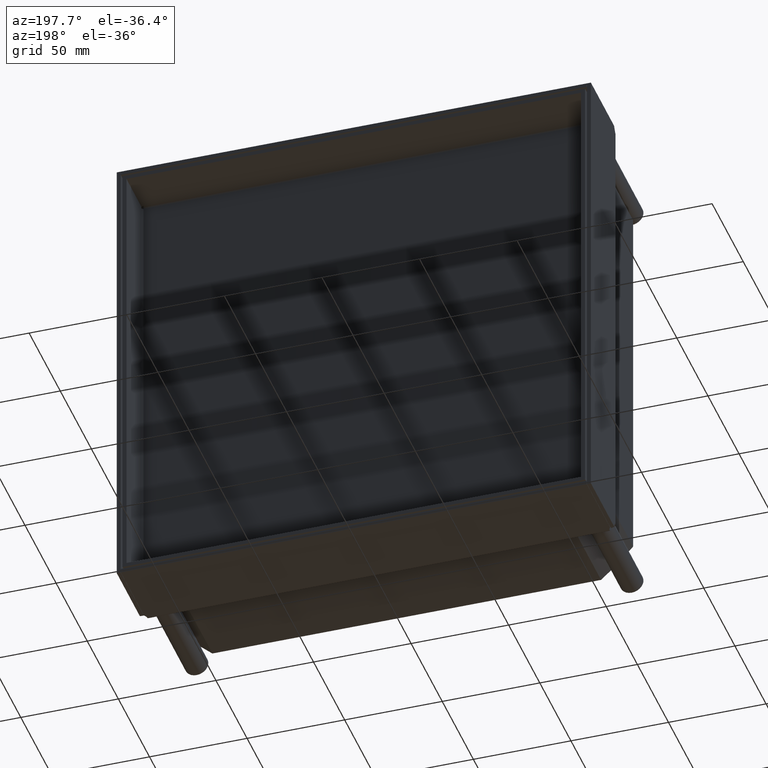
[diagram: clean part render]
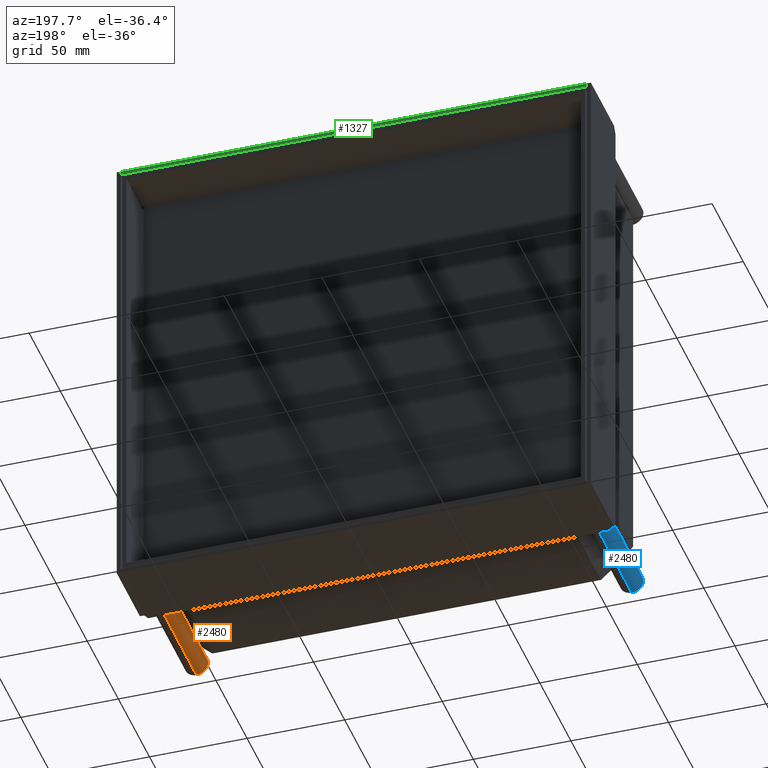
[diagram: same view with three faces highlighted in distinct colors, each labeled with its STEP entity id]
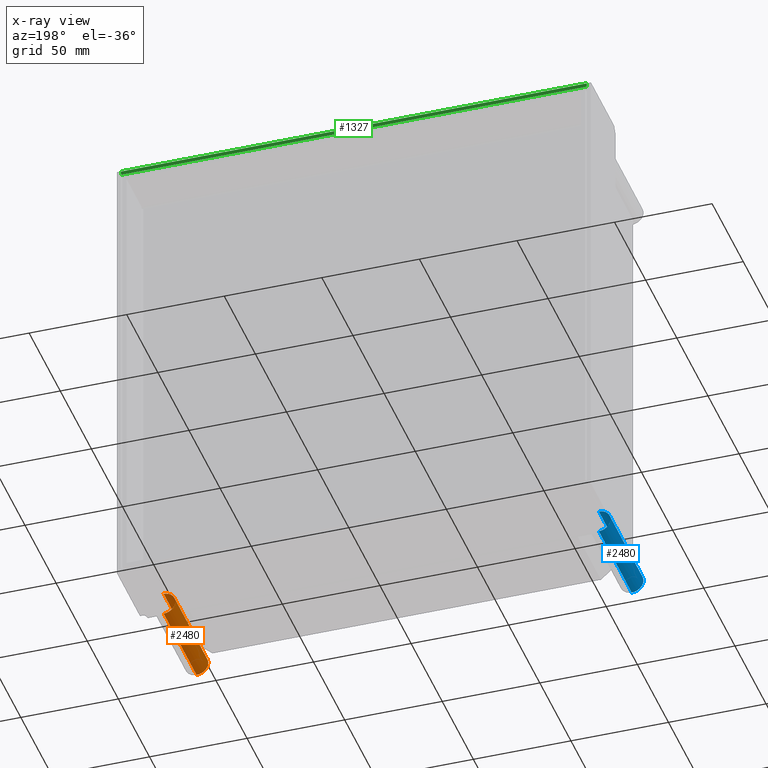
[diagram: x-ray of the same camera — body ghosted, the three highlighted faces saturated]
A machine part, auxiliary view with three faces highlighted in distinct colors.
The next image is the same camera in x-ray (body ghosted, the three faces saturated) — at least one of them is partly hidden behind the body in this view.
Their STEP definitions:

[orange] entity #2480 — the highlighted cylindrical surface (edge-blend (fillet) strip) has radius 6 mm, axis along (0, -1, 0).
#2236=CARTESIAN_POINT('',(0.E0,-4.973799150321E-14,1.065325243143E-14));
#2237=DIRECTION('',(0.E0,-1.E0,0.E0));
#2238=DIRECTION('',(0.E0,0.E0,1.E0));
#2239=AXIS2_PLACEMENT_3D('',#2236,#2237,#2238);
#2252=CARTESIAN_POINT('',(0.E0,5.3E1,0.E0));
#2253=DIRECTION('',(0.E0,-1.E0,0.E0));
#2254=DIRECTION('',(0.E0,0.E0,1.E0));
#2255=AXIS2_PLACEMENT_3D('',#2252,#2253,#2254);
#2260=DIRECTION('',(0.E0,-1.E0,0.E0));
#2261=VECTOR('',#2260,5.3E1);
#2262=CARTESIAN_POINT('',(0.E0,5.3E1,6.E0));
#2263=LINE('',#2262,#2261);
#2275=DIRECTION('',(0.E0,-1.E0,0.E0));
#2276=VECTOR('',#2275,5.3E1);
#2277=CARTESIAN_POINT('',(0.E0,5.3E1,-6.E0));
#2278=LINE('',#2277,#2276);
#2332=CARTESIAN_POINT('',(0.E0,5.3E1,6.E0));
#2333=CARTESIAN_POINT('',(0.E0,0.E0,6.E0));
#2334=VERTEX_POINT('',#2332);
#2335=VERTEX_POINT('',#2333);
#2348=CARTESIAN_POINT('',(0.E0,5.3E1,-6.E0));
#2349=CARTESIAN_POINT('',(0.E0,0.E0,-6.E0));
#2350=VERTEX_POINT('',#2348);
#2351=VERTEX_POINT('',#2349);
#2466=CARTESIAN_POINT('',(0.E0,6.09E1,0.E0));
#2467=DIRECTION('',(0.E0,-1.E0,0.E0));
#2468=DIRECTION('',(0.E0,0.E0,1.E0));
#2469=AXIS2_PLACEMENT_3D('',#2466,#2467,#2468);
#2470=CYLINDRICAL_SURFACE('',#2469,6.E0);
#2472=ORIENTED_EDGE('',*,*,#2471,.T.);
#2473=ORIENTED_EDGE('',*,*,#2455,.T.);
#2475=ORIENTED_EDGE('',*,*,#2474,.F.);
#2477=ORIENTED_EDGE('',*,*,#2476,.F.);
#2478=EDGE_LOOP('',(#2472,#2473,#2475,#2477));
#2479=FACE_OUTER_BOUND('',#2478,.F.);
#2240=CIRCLE('',#2239,6.E0);
#2256=CIRCLE('',#2255,6.E0);
#2455=EDGE_CURVE('',#2335,#2351,#2240,.T.);
#2471=EDGE_CURVE('',#2334,#2335,#2263,.T.);
#2474=EDGE_CURVE('',#2350,#2351,#2278,.T.);
#2476=EDGE_CURVE('',#2334,#2350,#2256,.T.);
#2480=ADVANCED_FACE('',(#2479),#2470,.T.);

[blue] entity #2480 — the highlighted cylindrical surface (edge-blend (fillet) strip) has radius 6 mm, axis along (0, -1, 0).
#2236=CARTESIAN_POINT('',(0.E0,-4.973799150321E-14,1.065325243143E-14));
#2237=DIRECTION('',(0.E0,-1.E0,0.E0));
#2238=DIRECTION('',(0.E0,0.E0,1.E0));
#2239=AXIS2_PLACEMENT_3D('',#2236,#2237,#2238);
#2252=CARTESIAN_POINT('',(0.E0,5.3E1,0.E0));
#2253=DIRECTION('',(0.E0,-1.E0,0.E0));
#2254=DIRECTION('',(0.E0,0.E0,1.E0));
#2255=AXIS2_PLACEMENT_3D('',#2252,#2253,#2254);
#2260=DIRECTION('',(0.E0,-1.E0,0.E0));
#2261=VECTOR('',#2260,5.3E1);
#2262=CARTESIAN_POINT('',(0.E0,5.3E1,6.E0));
#2263=LINE('',#2262,#2261);
#2275=DIRECTION('',(0.E0,-1.E0,0.E0));
#2276=VECTOR('',#2275,5.3E1);
#2277=CARTESIAN_POINT('',(0.E0,5.3E1,-6.E0));
#2278=LINE('',#2277,#2276);
#2332=CARTESIAN_POINT('',(0.E0,5.3E1,6.E0));
#2333=CARTESIAN_POINT('',(0.E0,0.E0,6.E0));
#2334=VERTEX_POINT('',#2332);
#2335=VERTEX_POINT('',#2333);
#2348=CARTESIAN_POINT('',(0.E0,5.3E1,-6.E0));
#2349=CARTESIAN_POINT('',(0.E0,0.E0,-6.E0));
#2350=VERTEX_POINT('',#2348);
#2351=VERTEX_POINT('',#2349);
#2466=CARTESIAN_POINT('',(0.E0,6.09E1,0.E0));
#2467=DIRECTION('',(0.E0,-1.E0,0.E0));
#2468=DIRECTION('',(0.E0,0.E0,1.E0));
#2469=AXIS2_PLACEMENT_3D('',#2466,#2467,#2468);
#2470=CYLINDRICAL_SURFACE('',#2469,6.E0);
#2472=ORIENTED_EDGE('',*,*,#2471,.T.);
#2473=ORIENTED_EDGE('',*,*,#2455,.T.);
#2475=ORIENTED_EDGE('',*,*,#2474,.F.);
#2477=ORIENTED_EDGE('',*,*,#2476,.F.);
#2478=EDGE_LOOP('',(#2472,#2473,#2475,#2477));
#2479=FACE_OUTER_BOUND('',#2478,.F.);
#2240=CIRCLE('',#2239,6.E0);
#2256=CIRCLE('',#2255,6.E0);
#2455=EDGE_CURVE('',#2335,#2351,#2240,.T.);
#2471=EDGE_CURVE('',#2334,#2335,#2263,.T.);
#2474=EDGE_CURVE('',#2350,#2351,#2278,.T.);
#2476=EDGE_CURVE('',#2334,#2350,#2256,.T.);
#2480=ADVANCED_FACE('',(#2479),#2470,.T.);

[green] entity #1327 — the highlighted planar face has unit normal (0, -1, 0).
#303=DIRECTION('',(1.E0,0.E0,0.E0));
#304=VECTOR('',#303,2.388E2);
#305=CARTESIAN_POINT('',(-1.194E2,4.2E1,1.195E2));
#306=LINE('',#305,#304);
#310=DIRECTION('',(-1.E0,0.E0,0.E0));
#311=VECTOR('',#310,2.388E2);
#312=CARTESIAN_POINT('',(1.194E2,4.2E1,1.215E2));
#313=LINE('',#312,#311);
#824=DIRECTION('',(0.E0,0.E0,-1.E0));
#825=VECTOR('',#824,2.E0);
#826=CARTESIAN_POINT('',(1.194E2,4.2E1,1.215E2));
#827=LINE('',#826,#825);
#952=DIRECTION('',(0.E0,0.E0,-1.E0));
#953=VECTOR('',#952,2.E0);
#954=CARTESIAN_POINT('',(-1.194E2,4.2E1,1.215E2));
#955=LINE('',#954,#953);
#1181=CARTESIAN_POINT('',(-1.194E2,4.2E1,1.215E2));
#1182=VERTEX_POINT('',#1181);
#1187=CARTESIAN_POINT('',(-1.194E2,4.2E1,1.195E2));
#1188=VERTEX_POINT('',#1187);
#1237=CARTESIAN_POINT('',(1.194E2,4.2E1,1.215E2));
#1238=VERTEX_POINT('',#1237);
#1243=CARTESIAN_POINT('',(1.194E2,4.2E1,1.195E2));
#1244=VERTEX_POINT('',#1243);
#1313=CARTESIAN_POINT('',(-5.97E1,4.2E1,1.205E2));
#1314=DIRECTION('',(0.E0,-1.E0,0.E0));
#1315=DIRECTION('',(1.E0,0.E0,0.E0));
#1316=AXIS2_PLACEMENT_3D('',#1313,#1314,#1315);
#1317=PLANE('',#1316);
#1319=ORIENTED_EDGE('',*,*,#1318,.T.);
#1321=ORIENTED_EDGE('',*,*,#1320,.F.);
#1322=ORIENTED_EDGE('',*,*,#1299,.T.);
#1324=ORIENTED_EDGE('',*,*,#1323,.T.);
#1325=EDGE_LOOP('',(#1319,#1321,#1322,#1324));
#1326=FACE_OUTER_BOUND('',#1325,.F.);
#1299=EDGE_CURVE('',#1238,#1182,#313,.T.);
#1318=EDGE_CURVE('',#1188,#1244,#306,.T.);
#1320=EDGE_CURVE('',#1238,#1244,#827,.T.);
#1323=EDGE_CURVE('',#1182,#1188,#955,.T.);
#1327=ADVANCED_FACE('',(#1326),#1317,.F.);